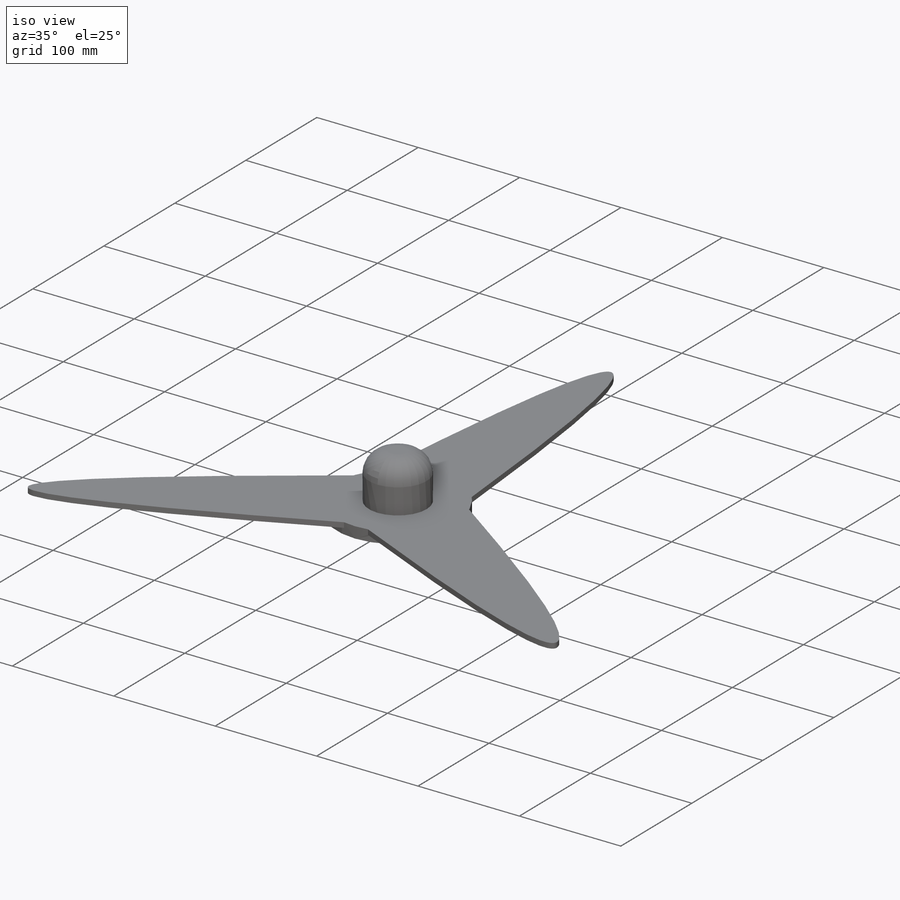
[diagram: iso view]
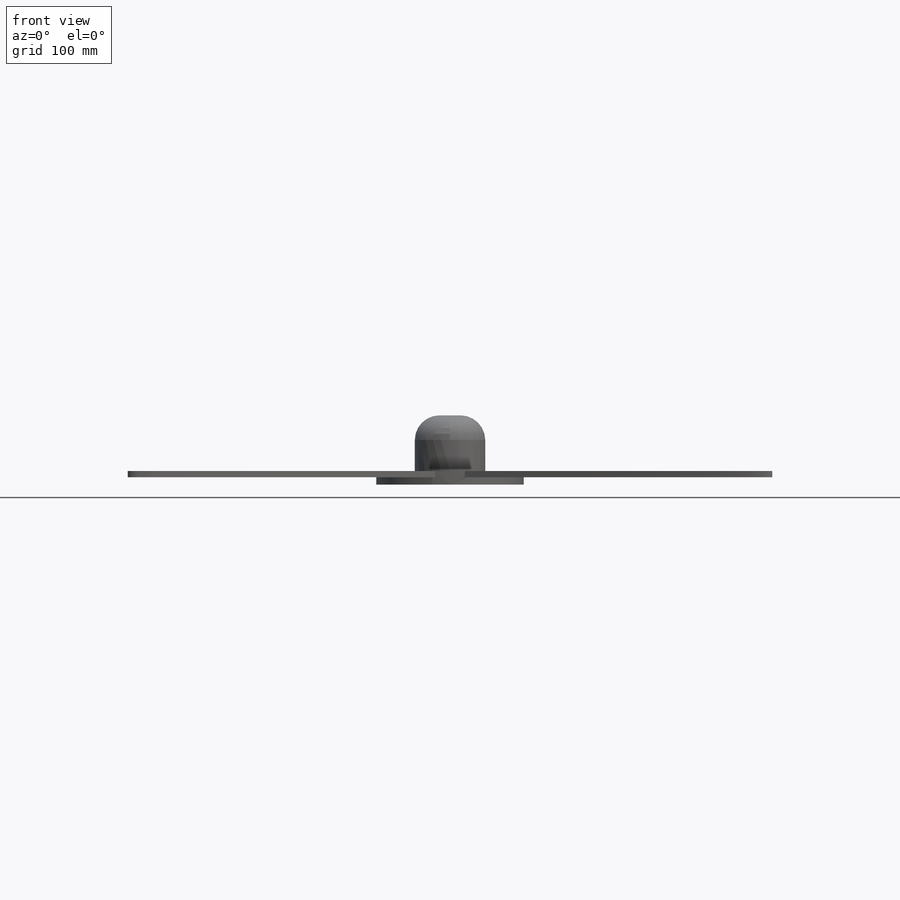
[diagram: front view]
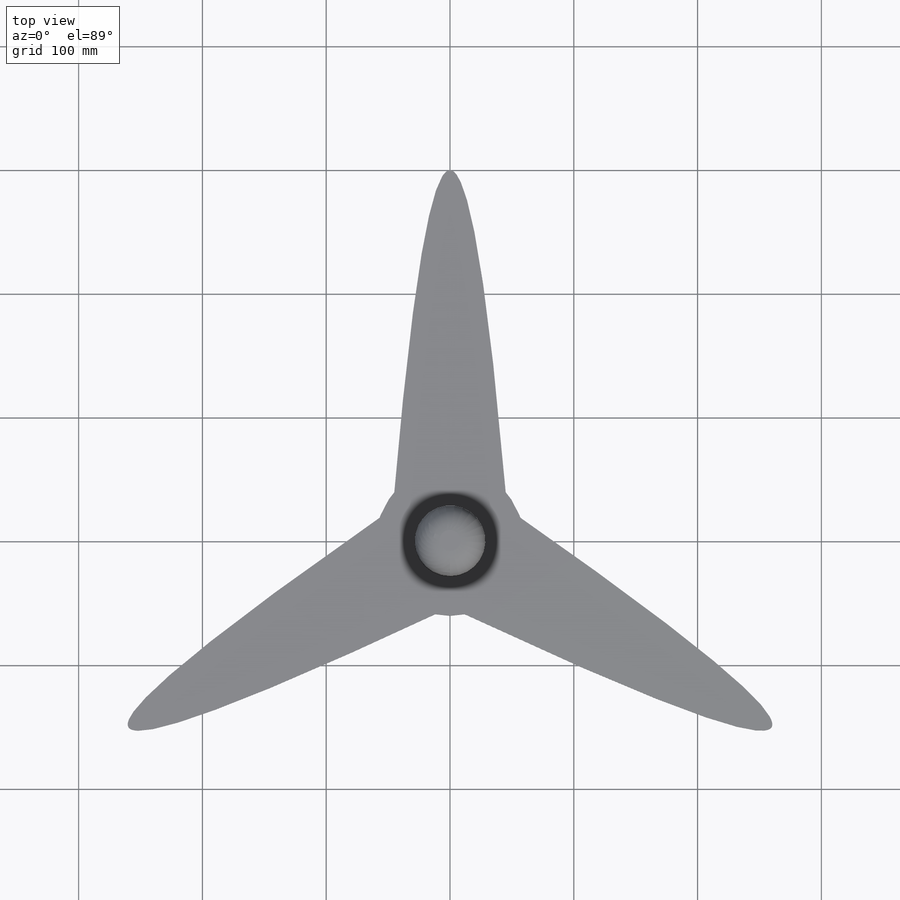
[diagram: top view]
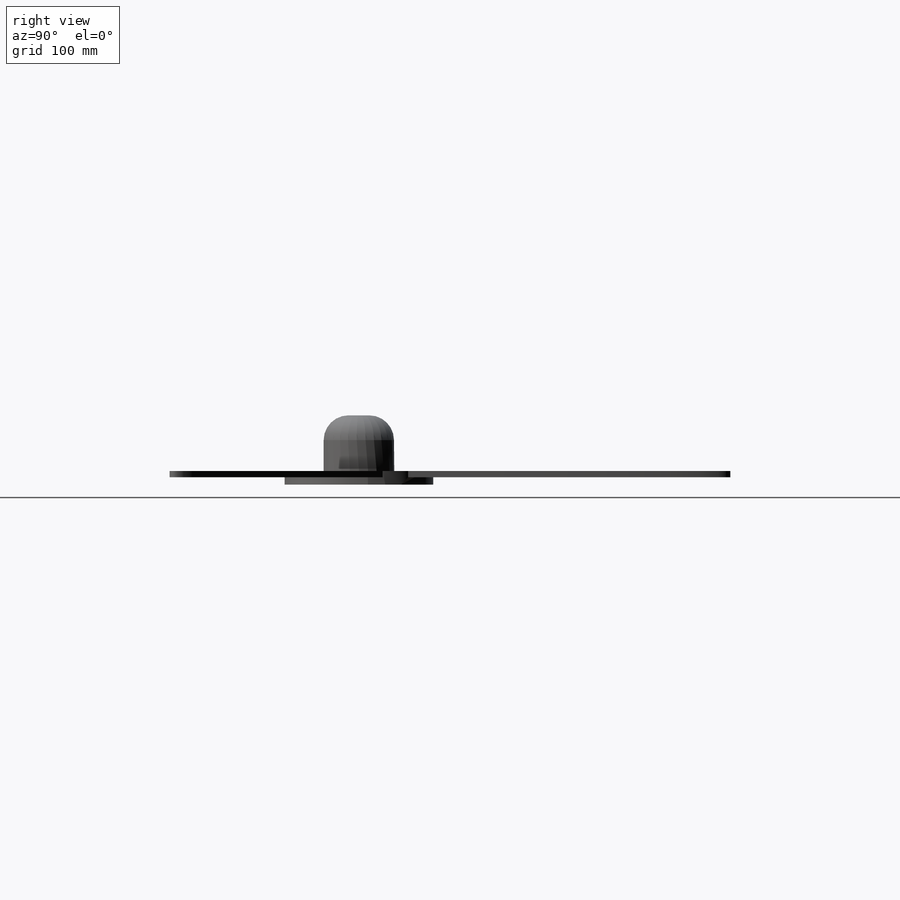
[diagram: right view]
SOLIDWORKS PART (.sldprt)
format: sldprt  version: not decoded by parser v0  size: 154,112 bytes
history: native  units: mm
features: sketch x4, extrude x3, material x1, fillet x1, cut_extrude x1 (+13 scaffold rows collapsed)
feature tree (23):
  scaffold x13  (default folders/planes/origin — collapsed)
  material  "Material <not specified>"
  sketch  "Sketch1"  dims[c1.D1=120.0mm c1.D2=600.0mm c1.D3=300.0mm c2.D3=120.0deg c2.D4=150.0mm c3.D4=120.0deg c3.D3=90.0mm]
  extrude  "Boss-Extrude1"  Depth=5mm
  sketch  "Sketch2"  dims[D1=57.0mm]
  extrude  "Boss-Extrude2"  Depth=45mm
  fillet  "Fillet1"  Radius=20mm
  sketch  "Sketch3"
  extrude  "Boss-Extrude3"  Depth=6mm
  sketch  "Sketch4"  dims[D1=48.0mm]
  cut_extrude  "Cut-Extrude1"  Depth=36mm
decode coverage: 8 of 9 modeling features carry decoded parameters
note: suppression state not decoded; provenance and decode notes live in map.json
